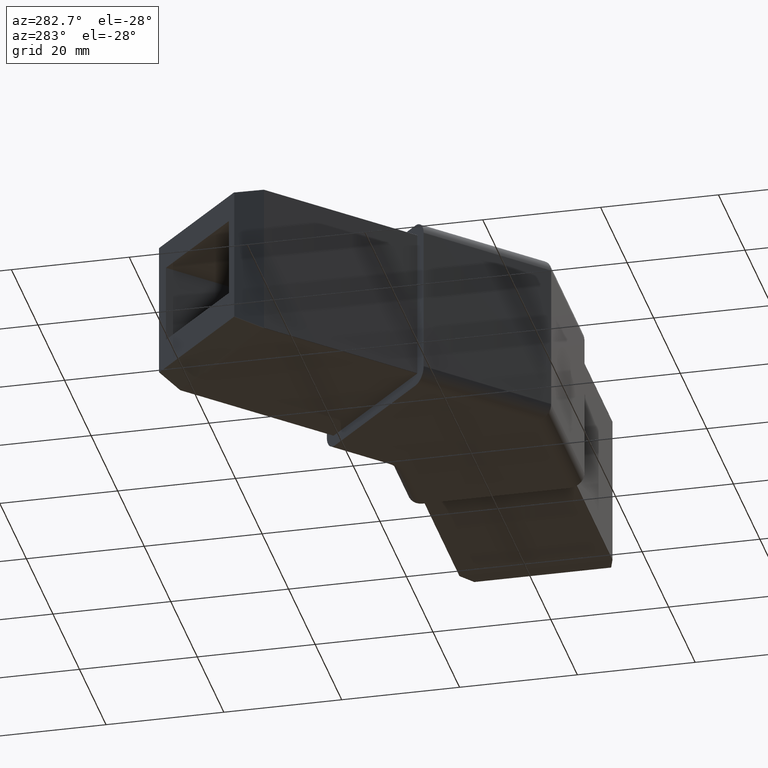
[diagram: clean part render]
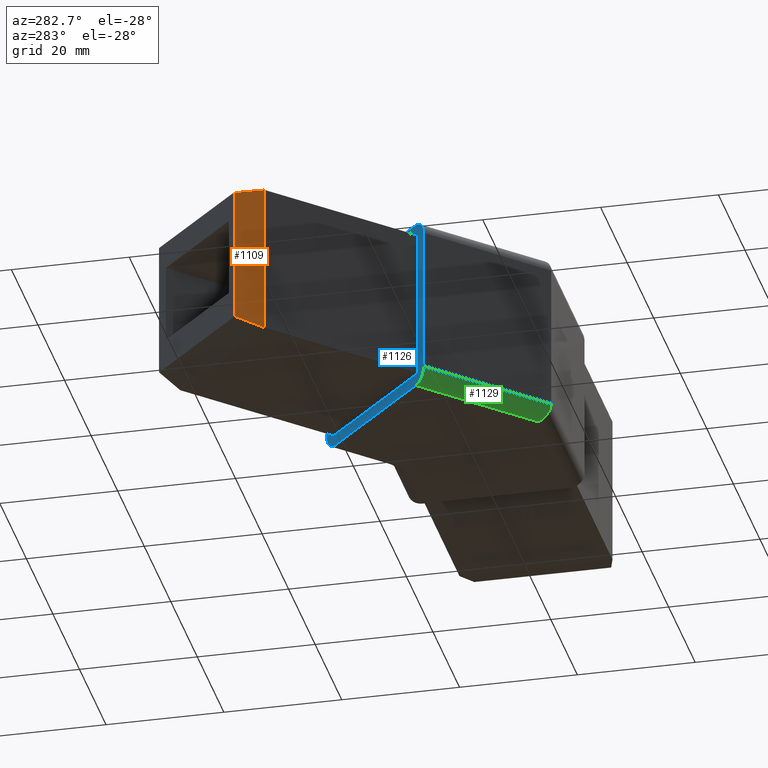
[diagram: same view with three faces highlighted in distinct colors, each labeled with its STEP entity id]
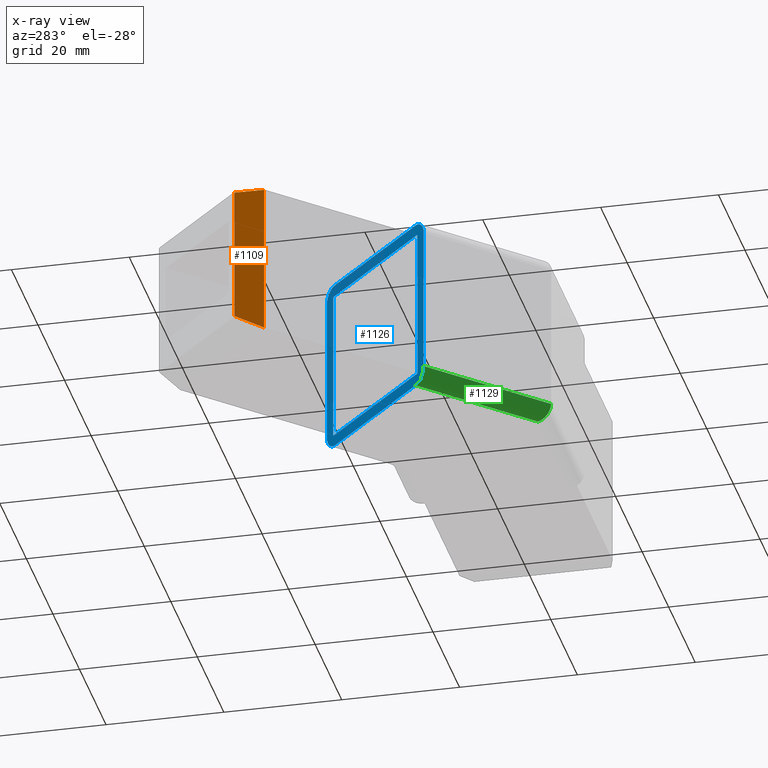
[diagram: x-ray of the same camera — body ghosted, the three highlighted faces saturated]
A machine part, auxiliary view with three faces highlighted in distinct colors.
The next image is the same camera in x-ray (body ghosted, the three faces saturated) — at least one of them is partly hidden behind the body in this view.
Their STEP definitions:

[orange] entity #1109 — the highlighted planar face has unit normal (-0.866, -0.5, -0).
#52=ELLIPSE('',#1167,0.386370330515625,0.1);
#57=ELLIPSE('',#1177,0.386370330515625,0.1);
#147=FACE_OUTER_BOUND('',#211,.T.);
#211=EDGE_LOOP('',(#905,#906,#907,#908,#909,#910));
#258=LINE('',#1669,#360);
#264=LINE('',#1694,#366);
#271=LINE('',#1719,#373);
#309=LINE('',#1849,#411);
#360=VECTOR('',#1314,10.);
#366=VECTOR('',#1338,10.);
#373=VECTOR('',#1363,10.);
#411=VECTOR('',#1503,10.);
#457=VERTEX_POINT('',#1666);
#458=VERTEX_POINT('',#1668);
#462=VERTEX_POINT('',#1678);
#468=VERTEX_POINT('',#1692);
#474=VERTEX_POINT('',#1709);
#475=VERTEX_POINT('',#1711);
#569=EDGE_CURVE('',#457,#458,#258,.T.);
#574=EDGE_CURVE('',#458,#462,#52,.T.);
#582=EDGE_CURVE('',#457,#468,#264,.T.);
#590=EDGE_CURVE('',#474,#475,#57,.T.);
#594=EDGE_CURVE('',#475,#468,#271,.T.);
#659=EDGE_CURVE('',#474,#462,#309,.T.);
#905=ORIENTED_EDGE('',*,*,#569,.F.);
#906=ORIENTED_EDGE('',*,*,#582,.T.);
#907=ORIENTED_EDGE('',*,*,#594,.F.);
#908=ORIENTED_EDGE('',*,*,#590,.F.);
#909=ORIENTED_EDGE('',*,*,#659,.T.);
#910=ORIENTED_EDGE('',*,*,#574,.F.);
#1061=PLANE('',#1231);
#1109=ADVANCED_FACE('',(#147),#1061,.T.);
#1167=AXIS2_PLACEMENT_3D('',#1679,#1324,#1325);
#1177=AXIS2_PLACEMENT_3D('',#1712,#1354,#1355);
#1231=AXIS2_PLACEMENT_3D('',#1848,#1501,#1502);
#1314=DIRECTION('',(0.484050172943185,-0.838399492950104,0.250562807085731));
#1324=DIRECTION('center_axis',(0.86602540378444,0.499999999999997,1.62975022622315E-16));
#1325=DIRECTION('ref_axis',(0.499999999999997,-0.86602540378444,0.));
#1338=DIRECTION('',(1.19305996924222E-16,1.19305996924222E-16,-1.));
#1354=DIRECTION('center_axis',(0.86602540378444,0.499999999999997,1.62975022622315E-16));
#1355=DIRECTION('ref_axis',(0.499999999999997,-0.86602540378444,-4.48979473569246E-17));
#1363=DIRECTION('',(-0.484050172943185,0.838399492950104,0.250562807085732));
#1501=DIRECTION('center_axis',(-0.86602540378444,-0.499999999999997,-1.62975022622315E-16));
#1502=DIRECTION('ref_axis',(-1.88187346364358E-16,0.,1.));
#1503=DIRECTION('',(-1.19305996924222E-16,-1.19305996924222E-16,1.));
#1666=CARTESIAN_POINT('',(-46.2781971401984,29.7881077391633,26.5636614552155));
#1668=CARTESIAN_POINT('',(-43.6901152014115,25.3054183270331,27.9033512473033));
#1669=CARTESIAN_POINT('',(-46.4678457730454,30.1165888068403,26.4654920990986));
#1678=CARTESIAN_POINT('',(-43.6900066891732,25.305230378323,27.9));
#1679=CARTESIAN_POINT('Origin',(-43.883191854431,25.6398368998181,27.9));
#1692=CARTESIAN_POINT('',(-46.2781971401984,29.7881077391633,3.43633854478453));
#1694=CARTESIAN_POINT('',(-46.2781971401984,29.7881077391633,8.5));
#1709=CARTESIAN_POINT('',(-43.6900066891732,25.305230378323,2.1));
#1711=CARTESIAN_POINT('',(-43.6901152014116,25.3054183270331,2.09664875269674));
#1712=CARTESIAN_POINT('Origin',(-43.883191854431,25.6398368998181,2.1));
#1719=CARTESIAN_POINT('',(-46.4678457730454,30.1165888068403,3.53450790090144));
#1848=CARTESIAN_POINT('Origin',(-44.9841019146858,27.5466690587432,8.5));
#1849=CARTESIAN_POINT('',(-43.6900066891732,25.305230378323,8.5));

[blue] entity #1126 — the highlighted planar face has unit normal (-0.7071, 0.7071, 0).
#21=FACE_BOUND('',#229,.T.);
#23=CIRCLE('',#1165,0.1);
#24=CIRCLE('',#1176,0.1);
#25=CIRCLE('',#1187,0.1);
#26=CIRCLE('',#1193,0.1);
#35=CIRCLE('',#1239,2.5);
#40=CIRCLE('',#1247,2.5);
#44=CIRCLE('',#1258,2.5);
#47=CIRCLE('',#1266,2.5);
#164=FACE_OUTER_BOUND('',#228,.T.);
#228=EDGE_LOOP('',(#979,#980,#981,#982,#983,#984,#985,#986));
#229=EDGE_LOOP('',(#987,#988,#989,#990,#991,#992,#993,#994));
#267=LINE('',#1703,#369);
#275=LINE('',#1726,#377);
#281=LINE('',#1749,#383);
#322=LINE('',#1901,#424);
#332=LINE('',#1952,#434);
#334=LINE('',#1956,#436);
#335=LINE('',#1958,#437);
#336=LINE('',#1959,#438);
#369=VECTOR('',#1347,10.);
#377=VECTOR('',#1369,10.);
#383=VECTOR('',#1395,10.);
#424=VECTOR('',#1560,10.);
#434=VECTOR('',#1592,10.);
#436=VECTOR('',#1596,10.);
#437=VECTOR('',#1599,10.);
#438=VECTOR('',#1600,10.);
#459=VERTEX_POINT('',#1672);
#460=VERTEX_POINT('',#1673);
#471=VERTEX_POINT('',#1702);
#472=VERTEX_POINT('',#1706);
#473=VERTEX_POINT('',#1707);
#479=VERTEX_POINT('',#1724);
#482=VERTEX_POINT('',#1736);
#486=VERTEX_POINT('',#1748);
#523=VERTEX_POINT('',#1862);
#524=VERTEX_POINT('',#1863);
#529=VERTEX_POINT('',#1880);
#530=VERTEX_POINT('',#1881);
#535=VERTEX_POINT('',#1900);
#540=VERTEX_POINT('',#1933);
#545=VERTEX_POINT('',#1951);
#546=VERTEX_POINT('',#1955);
#571=EDGE_CURVE('',#459,#460,#23,.F.);
#586=EDGE_CURVE('',#471,#460,#267,.T.);
#588=EDGE_CURVE('',#472,#473,#24,.F.);
#598=EDGE_CURVE('',#472,#479,#275,.T.);
#603=EDGE_CURVE('',#471,#482,#25,.F.);
#609=EDGE_CURVE('',#486,#482,#281,.T.);
#611=EDGE_CURVE('',#486,#479,#26,.F.);
#665=EDGE_CURVE('',#523,#524,#35,.T.);
#674=EDGE_CURVE('',#529,#530,#40,.T.);
#684=EDGE_CURVE('',#530,#535,#322,.T.);
#691=EDGE_CURVE('',#535,#540,#44,.T.);
#700=EDGE_CURVE('',#545,#540,#332,.T.);
#702=EDGE_CURVE('',#546,#523,#334,.T.);
#703=EDGE_CURVE('',#545,#546,#47,.T.);
#704=EDGE_CURVE('',#524,#529,#335,.T.);
#705=EDGE_CURVE('',#459,#473,#336,.T.);
#979=ORIENTED_EDGE('',*,*,#665,.F.);
#980=ORIENTED_EDGE('',*,*,#702,.F.);
#981=ORIENTED_EDGE('',*,*,#703,.F.);
#982=ORIENTED_EDGE('',*,*,#700,.T.);
#983=ORIENTED_EDGE('',*,*,#691,.F.);
#984=ORIENTED_EDGE('',*,*,#684,.F.);
#985=ORIENTED_EDGE('',*,*,#674,.F.);
#986=ORIENTED_EDGE('',*,*,#704,.F.);
#987=ORIENTED_EDGE('',*,*,#609,.T.);
#988=ORIENTED_EDGE('',*,*,#603,.F.);
#989=ORIENTED_EDGE('',*,*,#586,.T.);
#990=ORIENTED_EDGE('',*,*,#571,.F.);
#991=ORIENTED_EDGE('',*,*,#705,.T.);
#992=ORIENTED_EDGE('',*,*,#588,.F.);
#993=ORIENTED_EDGE('',*,*,#598,.T.);
#994=ORIENTED_EDGE('',*,*,#611,.F.);
#1067=PLANE('',#1265);
#1126=ADVANCED_FACE('',(#164,#21),#1067,.T.);
#1165=AXIS2_PLACEMENT_3D('',#1674,#1319,#1320);
#1176=AXIS2_PLACEMENT_3D('',#1708,#1351,#1352);
#1187=AXIS2_PLACEMENT_3D('',#1737,#1382,#1383);
#1193=AXIS2_PLACEMENT_3D('',#1752,#1399,#1400);
#1239=AXIS2_PLACEMENT_3D('',#1864,#1519,#1520);
#1247=AXIS2_PLACEMENT_3D('',#1882,#1539,#1540);
#1258=AXIS2_PLACEMENT_3D('',#1934,#1572,#1573);
#1265=AXIS2_PLACEMENT_3D('',#1954,#1594,#1595);
#1266=AXIS2_PLACEMENT_3D('',#1957,#1597,#1598);
#1319=DIRECTION('center_axis',(0.707106781186547,-0.707106781186548,0.));
#1320=DIRECTION('ref_axis',(-0.499999999999999,-0.499999999999999,0.707106781186549));
#1347=DIRECTION('',(-0.707106781186548,-0.707106781186547,-1.04672830578918E-16));
#1351=DIRECTION('center_axis',(0.707106781186547,-0.707106781186548,0.));
#1352=DIRECTION('ref_axis',(-0.499999999999993,-0.499999999999993,-0.707106781186557));
#1369=DIRECTION('',(0.707106781186548,0.707106781186547,1.04672830578918E-16));
#1382=DIRECTION('center_axis',(0.707106781186547,-0.707106781186548,0.));
#1383=DIRECTION('ref_axis',(0.499999999999999,0.499999999999999,0.707106781186549));
#1395=DIRECTION('',(-7.4014868308344E-17,-7.40148683083438E-17,1.));
#1399=DIRECTION('center_axis',(0.707106781186547,-0.707106781186548,0.));
#1400=DIRECTION('ref_axis',(0.499999999999993,0.499999999999993,-0.707106781186557));
#1519=DIRECTION('center_axis',(0.707106781186547,-0.707106781186548,0.));
#1520=DIRECTION('ref_axis',(0.5,0.5,-0.707106781186547));
#1539=DIRECTION('center_axis',(0.707106781186547,-0.707106781186548,0.));
#1540=DIRECTION('ref_axis',(0.5,0.5,0.707106781186547));
#1560=DIRECTION('',(-0.707106781186548,-0.707106781186547,0.));
#1572=DIRECTION('center_axis',(0.707106781186547,-0.707106781186548,0.));
#1573=DIRECTION('ref_axis',(-0.499999999999999,-0.5,0.707106781186548));
#1592=DIRECTION('',(0.,0.,1.));
#1594=DIRECTION('center_axis',(-0.707106781186547,0.707106781186548,0.));
#1595=DIRECTION('ref_axis',(-0.707106781186548,-0.707106781186547,0.));
#1596=DIRECTION('',(0.707106781186548,0.707106781186547,0.));
#1597=DIRECTION('center_axis',(0.707106781186547,-0.707106781186548,0.));
#1598=DIRECTION('ref_axis',(-0.499999999999999,-0.5,-0.707106781186548));
#1599=DIRECTION('',(0.,0.,1.));
#1600=DIRECTION('',(1.19305996924222E-16,1.19305996924222E-16,-1.));
#1672=CARTESIAN_POINT('',(-22.4768032535768,4.09202694272657,27.9));
#1673=CARTESIAN_POINT('',(-22.4060925754581,4.16273762084522,28.));
#1674=CARTESIAN_POINT('Origin',(-22.4060925754581,4.16273762084522,27.9));
#1702=CARTESIAN_POINT('',(-4.16273762084519,22.4060925754581,28.));
#1703=CARTESIAN_POINT('',(-12.5773083169651,13.9915218793382,28.));
#1706=CARTESIAN_POINT('',(-22.4060925754581,4.16273762084522,2.));
#1707=CARTESIAN_POINT('',(-22.4768032535768,4.09202694272657,2.1));
#1708=CARTESIAN_POINT('Origin',(-22.4060925754581,4.16273762084522,2.1));
#1724=CARTESIAN_POINT('',(-4.16273762084519,22.4060925754581,2.00000000000001));
#1726=CARTESIAN_POINT('',(-3.38492016153998,23.1839100347633,2.00000000000001));
#1736=CARTESIAN_POINT('',(-4.09202694272654,22.4768032535768,27.9));
#1737=CARTESIAN_POINT('Origin',(-4.16273762084519,22.4060925754581,27.9));
#1748=CARTESIAN_POINT('',(-4.09202694272654,22.4768032535768,2.10000000000001));
#1749=CARTESIAN_POINT('',(-4.09202694272654,22.4768032535768,14.));
#1752=CARTESIAN_POINT('Origin',(-4.16273762084519,22.4060925754581,2.10000000000001));
#1862=CARTESIAN_POINT('',(-4.44558033331981,22.1232498629835,0.));
#1863=CARTESIAN_POINT('',(-2.67781338035344,23.8910168159499,2.5));
#1864=CARTESIAN_POINT('Origin',(-4.44558033331981,22.1232498629835,2.5));
#1880=CARTESIAN_POINT('',(-2.67781338035344,23.8910168159499,27.5));
#1881=CARTESIAN_POINT('',(-4.44558033331981,22.1232498629835,30.));
#1882=CARTESIAN_POINT('Origin',(-4.44558033331981,22.1232498629835,27.5));
#1900=CARTESIAN_POINT('',(-22.1232498629835,4.44558033331983,30.));
#1901=CARTESIAN_POINT('',(-23.8910168159499,2.67781338035347,30.));
#1933=CARTESIAN_POINT('',(-23.8910168159499,2.67781338035347,27.5));
#1934=CARTESIAN_POINT('Origin',(-22.1232498629835,4.44558033331981,27.5));
#1951=CARTESIAN_POINT('',(-23.8910168159499,2.67781338035347,2.5));
#1952=CARTESIAN_POINT('',(-23.8910168159499,2.67781338035347,0.));
#1954=CARTESIAN_POINT('Origin',(-2.67781338035343,23.8910168159499,0.));
#1955=CARTESIAN_POINT('',(-22.1232498629835,4.44558033331983,0.));
#1956=CARTESIAN_POINT('',(-23.8910168159499,2.67781338035347,0.));
#1957=CARTESIAN_POINT('Origin',(-22.1232498629835,4.44558033331981,2.5));
#1958=CARTESIAN_POINT('',(-2.67781338035344,23.8910168159499,0.));
#1959=CARTESIAN_POINT('',(-22.4768032535768,4.09202694272657,0.999999999999999));

[green] entity #1129 — the highlighted cylindrical surface (edge-blend (fillet) strip) has radius 2.5 mm, axis along (-0.7071, 0.7071, 0).
#47=CIRCLE('',#1266,2.5);
#83=ELLIPSE('',#1267,2.6904014127007,2.5);
#110=CYLINDRICAL_SURFACE('',#1271,2.5);
#167=FACE_OUTER_BOUND('',#232,.T.);
#232=EDGE_LOOP('',(#1002,#1003,#1004,#1005));
#333=LINE('',#1953,#435);
#338=LINE('',#1988,#440);
#435=VECTOR('',#1593,10.);
#440=VECTOR('',#1612,10.);
#544=VERTEX_POINT('',#1947);
#545=VERTEX_POINT('',#1951);
#546=VERTEX_POINT('',#1955);
#547=VERTEX_POINT('',#1980);
#701=EDGE_CURVE('',#544,#545,#333,.T.);
#703=EDGE_CURVE('',#545,#546,#47,.T.);
#706=EDGE_CURVE('',#544,#547,#83,.T.);
#710=EDGE_CURVE('',#546,#547,#338,.T.);
#1002=ORIENTED_EDGE('',*,*,#706,.F.);
#1003=ORIENTED_EDGE('',*,*,#701,.T.);
#1004=ORIENTED_EDGE('',*,*,#703,.T.);
#1005=ORIENTED_EDGE('',*,*,#710,.T.);
#1129=ADVANCED_FACE('',(#167),#110,.T.);
#1266=AXIS2_PLACEMENT_3D('',#1957,#1597,#1598);
#1267=AXIS2_PLACEMENT_3D('',#1981,#1601,#1602);
#1271=AXIS2_PLACEMENT_3D('',#1987,#1610,#1611);
#1593=DIRECTION('',(-0.707106781186547,0.707106781186548,0.));
#1597=DIRECTION('center_axis',(0.707106781186547,-0.707106781186548,0.));
#1598=DIRECTION('ref_axis',(-0.499999999999999,-0.5,-0.707106781186548));
#1601=DIRECTION('center_axis',(0.918342767162943,-0.39578600531033,0.));
#1602=DIRECTION('ref_axis',(-0.39578600531033,-0.918342767162943,0.));
#1610=DIRECTION('center_axis',(-0.707106781186547,0.707106781186548,0.));
#1611=DIRECTION('ref_axis',(-0.499999999999999,-0.5,-0.707106781186548));
#1612=DIRECTION('',(0.707106781186547,-0.707106781186548,0.));
#1947=CARTESIAN_POINT('',(-6.24249275747778,-14.9707106781187,2.5));
#1951=CARTESIAN_POINT('',(-23.8910168159499,2.67781338035347,2.5));
#1953=CARTESIAN_POINT('',(-17.5771669847223,-3.6360364508741,2.5));
#1955=CARTESIAN_POINT('',(-22.1232498629835,4.44558033331983,0.));
#1957=CARTESIAN_POINT('Origin',(-22.1232498629835,4.44558033331981,2.5));
#1980=CARTESIAN_POINT('',(-5.1776695296637,-12.5,2.77555756156289E-16));
#1981=CARTESIAN_POINT('Origin',(-5.1776695296637,-12.5,2.5));
#1987=CARTESIAN_POINT('Origin',(-15.809400031756,-1.86826949790773,2.5));
#1988=CARTESIAN_POINT('',(-15.809400031756,-1.86826949790773,0.));